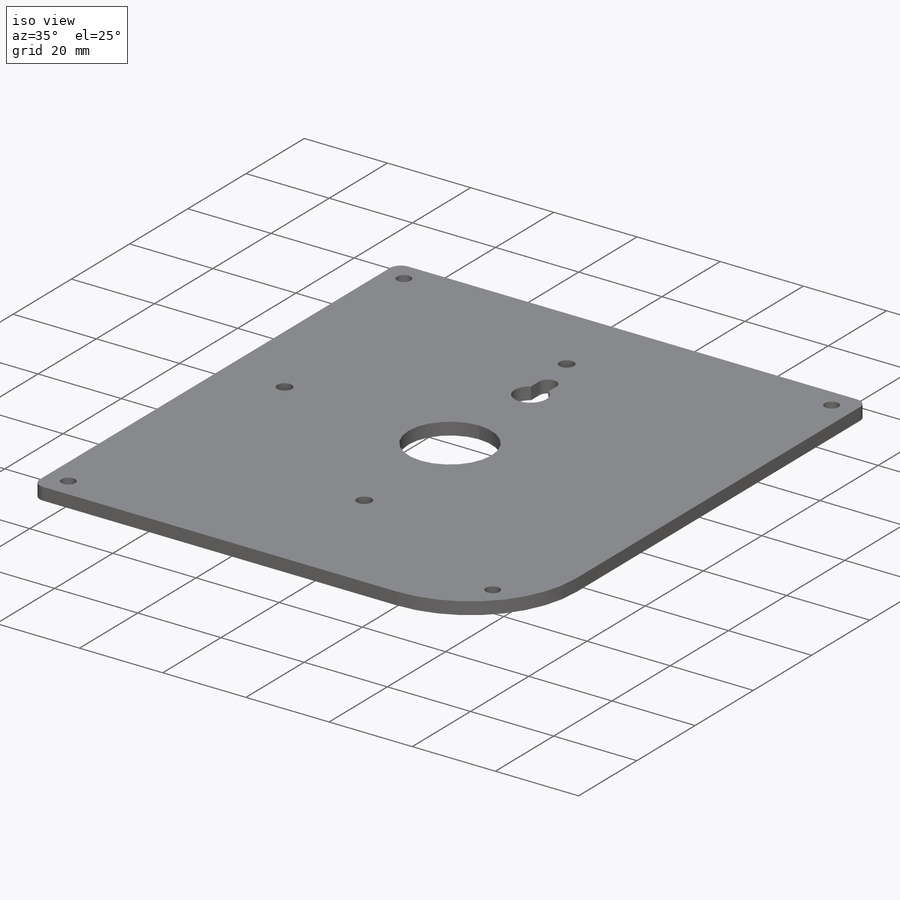
[diagram: iso view]
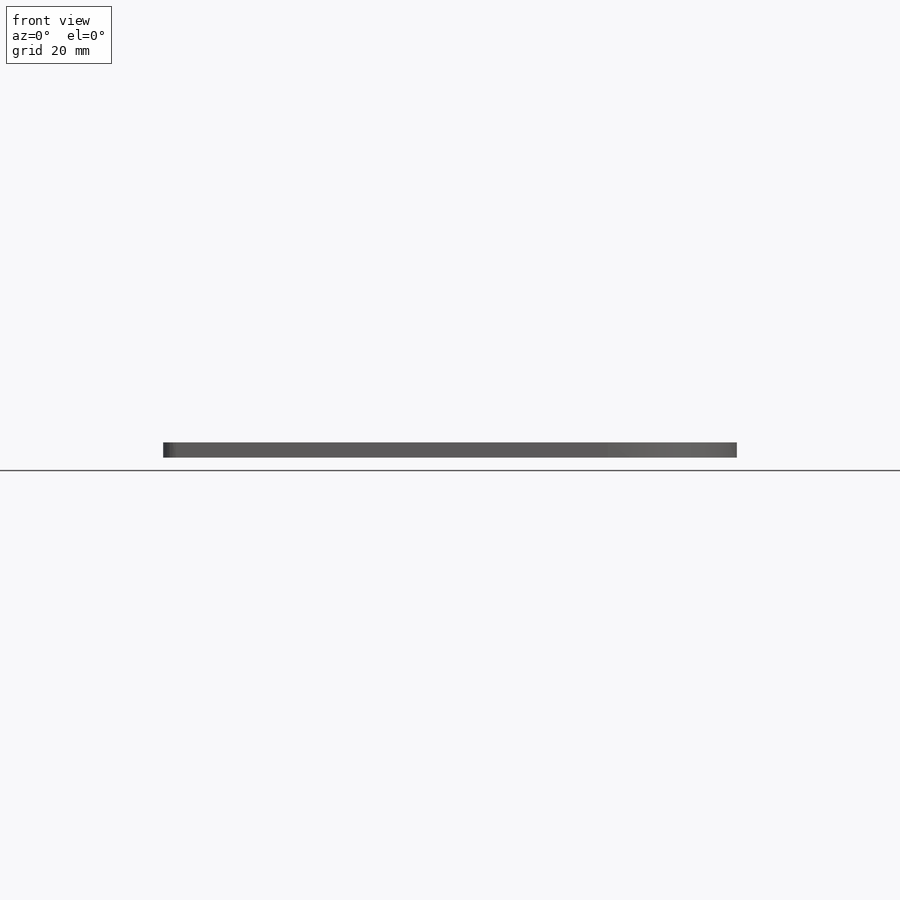
[diagram: front view]
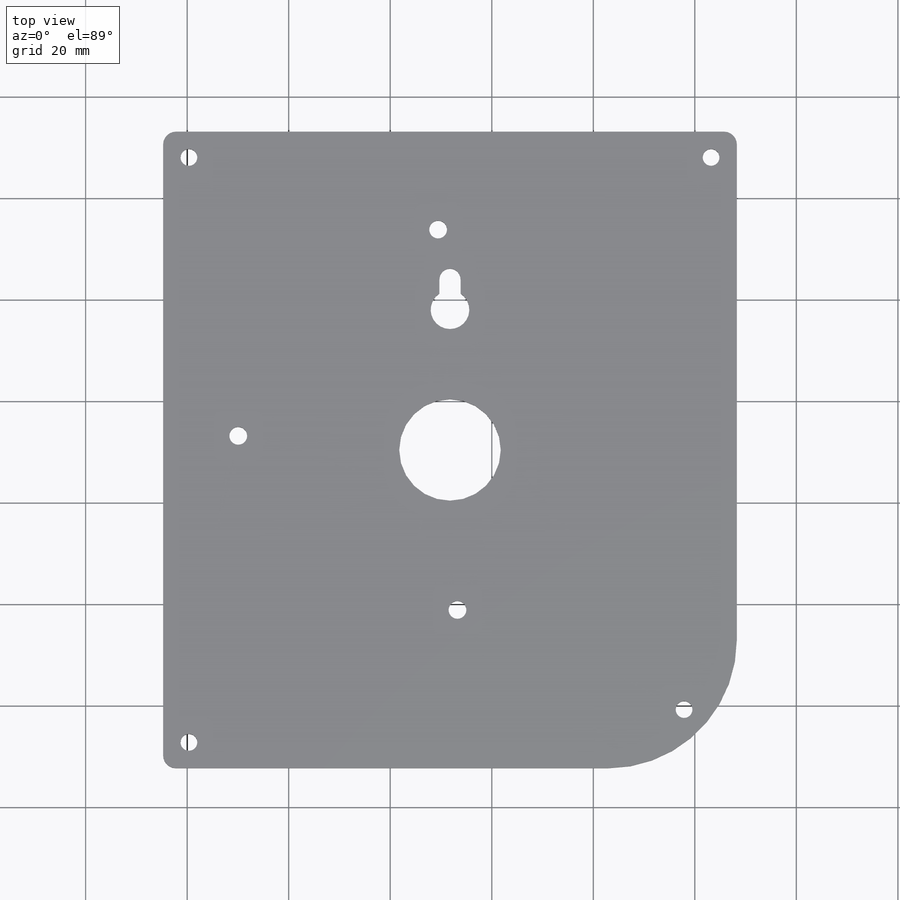
[diagram: top view]
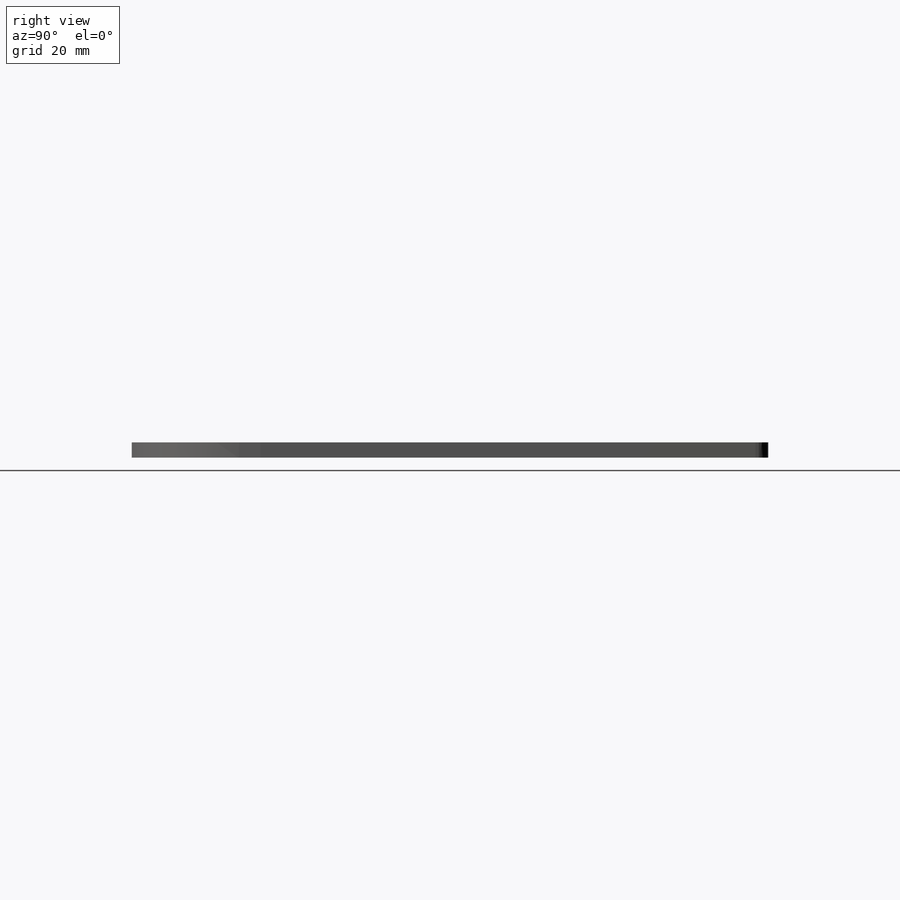
[diagram: right view]
SOLIDWORKS PART (.sldprt)
format: sldprt  version: not decoded by parser v0  size: 284,672 bytes
history: native  units: mm
features: sketch x4, cut_extrude x3, material x1, extrude x1, fillet x1 + 1 further entry (+12 scaffold rows collapsed)
feature tree (23):
  scaffold x12  (default folders/planes/origin — collapsed)
  material  "Material <not specified>"
  "Annotations"  RD1=102.86mm
  sketch  "Sketch1"  dims[c1.D3=50.8mm c1.D7=50.8mm c1.D8=50.8mm c1.D9=12.7mm c1.D10=3.3mm c1.D11=10.0mm c1.D12=3.3mm c1.D13=5.0mm c1.D14=5.0mm c1.D15=3.3mm c1.D16=3.3mm c1.D17=5.0mm c1.D1=~100.000054mm c1.D2=74.92mm c1.0.75=19.05mm c1.D4=19.05mm c1.D5=12.7mm c1.D6=12.7mm c2.D7=25.4mm c2.D8=25.4mm c2.D9=5.08mm]
  extrude  "Boss-Extrude3"  Depth=3mm
  sketch  "Sketch3"  dims[c1.D3=7.62mm c1.D4=4.1656mm c1.D1=30.0mm c2.D3=10.0mm c2.D5=~13.210333mm c2.D6=35.08mm c3.D5=6.0mm c3.D2=5.08mm]
  cut_extrude  "Cut-Extrude1"  [1 undecoded]
  sketch  "Sketch4"  dims[c1.D8=~10.773442mm c1.D11=~11.34943mm c1.D12=3.5mm c1.D13=3.5mm c1.D14=3.5mm c1.D2=74.92mm c1.D3=100.0mm c1.D4=12.0mm c1.D5=11.0mm c1.D6=52.07mm c1.D7=71.12mm c2.D8=17.78mm c2.D9=27.94mm c2.D10=31.75mm c2.D11=92.71mm c2.D1=5.08mm]
  cut_extrude  "Cut-Extrude2"  [1 undecoded]
  sketch  "Sketch5"  dims[D1=113.02mm]
  cut_extrude  "Cut-Extrude3"  [1 undecoded]
  fillet  "Fillet1"  Radius=2.54mm
decode coverage: 6 of 9 modeling features carry decoded parameters; 1 rows unclassified (native names shown)
note: ~ marks probable driven/reference dimensions
note: 3 parameter values undecoded
summary: no parameter record found for 3 features
note: suppression state not decoded; provenance and decode notes live in map.json
